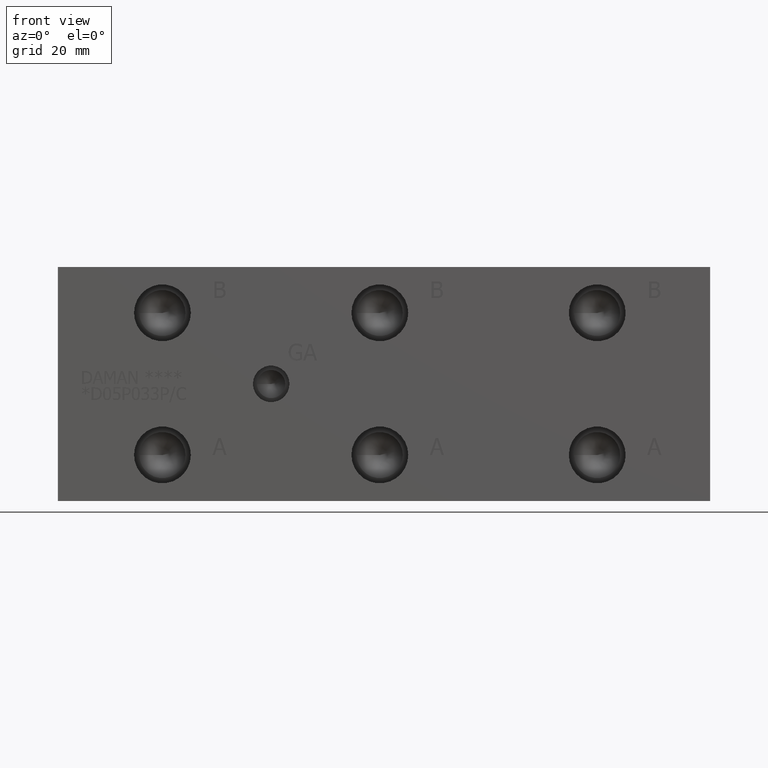
[diagram: clean part render]
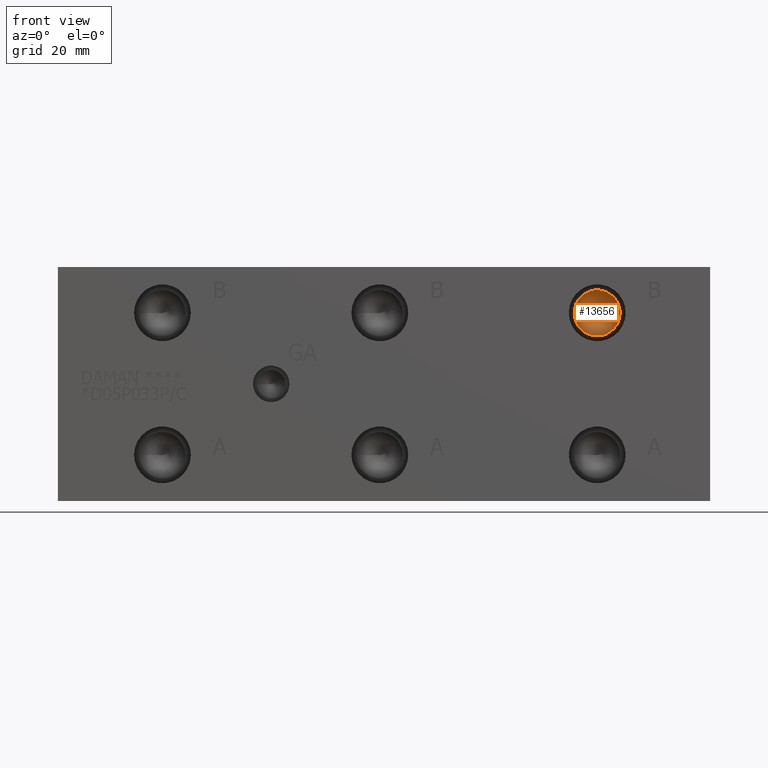
[diagram: same view with one face highlighted and labeled with its STEP entity id]
A machine part, front view. The second image highlights one B-rep face of the part: STEP entity #13656.
In plain terms, the highlighted conical surface has half-angle 60 deg.
Its self-contained STEP definition (entity closure, byte-faithful):
#28=CONICAL_SURFACE('',#14281,4.3688,1.0471975511966);
#426=CIRCLE('',#14282,8.7376);
#427=CIRCLE('',#14283,8.7376);
#1702=FACE_OUTER_BOUND('',#2485,.T.);
#2485=EDGE_LOOP('',(#11597,#11598,#11599,#11600));
#3794=LINE('',#23259,#5038);
#5038=VECTOR('',#16733,4.3688);
#6241=VERTEX_POINT('',#23255);
#6242=VERTEX_POINT('',#23256);
#6243=VERTEX_POINT('',#23258);
#8088=EDGE_CURVE('',#6241,#6242,#426,.T.);
#8089=EDGE_CURVE('',#6242,#6243,#3794,.T.);
#8090=EDGE_CURVE('',#6242,#6241,#427,.T.);
#11597=ORIENTED_EDGE('',*,*,#8088,.T.);
#11598=ORIENTED_EDGE('',*,*,#8089,.T.);
#11599=ORIENTED_EDGE('',*,*,#8089,.F.);
#11600=ORIENTED_EDGE('',*,*,#8090,.T.);
#13656=ADVANCED_FACE('',(#1702),#28,.F.);
#14281=AXIS2_PLACEMENT_3D('',#23254,#16729,#16730);
#14282=AXIS2_PLACEMENT_3D('',#23257,#16731,#16732);
#14283=AXIS2_PLACEMENT_3D('',#23260,#16734,#16735);
#16729=DIRECTION('center_axis',(0.,-1.,0.));
#16730=DIRECTION('ref_axis',(1.,0.,0.));
#16731=DIRECTION('center_axis',(0.,-1.,0.));
#16732=DIRECTION('ref_axis',(1.,0.,0.));
#16733=DIRECTION('',(0.866025403784439,0.5,1.06057523872491E-16));
#16734=DIRECTION('center_axis',(0.,-1.,0.));
#16735=DIRECTION('ref_axis',(1.,0.,0.));
#23254=CARTESIAN_POINT('Origin',(204.7748,18.3937978560356,71.4248));
#23255=CARTESIAN_POINT('',(213.5124,15.87147,71.4248));
#23256=CARTESIAN_POINT('',(196.0372,15.87147,71.4248));
#23257=CARTESIAN_POINT('Origin',(204.7748,15.87147,71.4248));
#23258=CARTESIAN_POINT('',(204.7748,20.9161257120713,71.4248));
#23259=CARTESIAN_POINT('',(200.406,18.3937978560356,71.4248));
#23260=CARTESIAN_POINT('Origin',(204.7748,15.87147,71.4248));